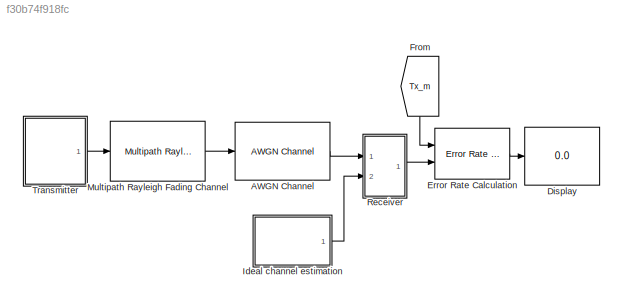
MODEL slx_f30b74f918fc
KIND model
CONFIG AbsTol = auto
CONFIG FixedStep = auto
CONFIG InitFcn = DopplerShift = 10; % 最大多普勒频移，单位Hz\n% LTE EPA信道模型\nTau = ([0 30 70 90 110 190 410]) * 1e-9; % 每径的延迟，单位s\nPdb = [0 -1.0 -2.0 -3.0 -8.0 -17.2 -20.8]; % 每径的功率衰减\nSNR = 10; % 信噪比\nSimTime = 5; % 仿真时间\n
CONFIG MaxStep = auto
CONFIG MinStep = auto
CONFIG RelTol = 1e-3
CONFIG SampleTimeConstraint = Unconstrained
CONFIG Solver = VariableStepDiscrete
CONFIG SolverMode = Auto
CONFIG SolverName = VariableStepDiscrete
CONFIG StartTime = 0.0
CONFIG StopTime = SimTime
BLOCK [Reference] AWGN Channel  REF=commchan3/AWGN
Channel
  Ports = [1, 1]
  SourceBlock = commchan3/AWGN\nChannel
  SourceType = AWGN Channel
  UserDataPersistent = on
BLOCK [Display] Display
  Decimation = 1
  Ports = [1]
BLOCK [Reference] Error Rate Calculation  REF=commsink2/Error Rate
Calculation
  Ports = [2, 1]
  SourceBlock = commsink2/Error Rate\nCalculation
  SourceType = Error Rate Calculation
BLOCK [From] From
  GotoTag = Tx_m
  TagVisibility = global
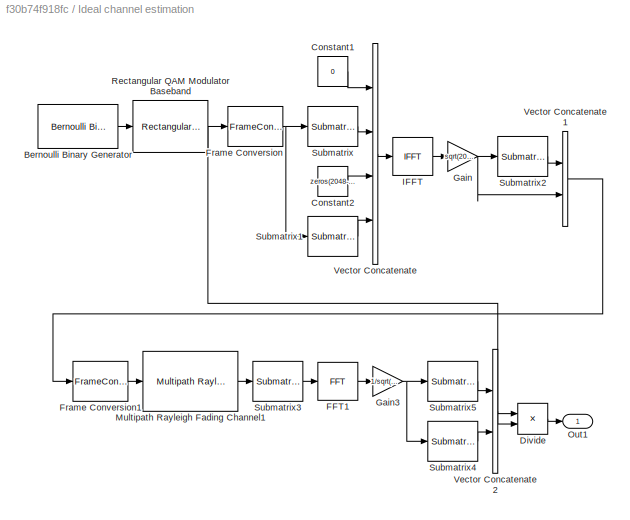
BLOCK [SubSystem] Ideal channel estimation
  Ports = [0, 1]
  RequestExecContextInheritance = off
  Variant = off
BLOCK [Reference] Ideal channel estimation/Bernoulli Binary Generator  REF=commrandsrc2/Bernoulli Binary
Generator
  Ports = [0, 1]
  SourceBlock = commrandsrc2/Bernoulli Binary\nGenerator
  SourceType = Bernoulli Binary Generator
BLOCK [Constant] Ideal channel estimation/Constant1
  Value = 0
BLOCK [Constant] Ideal channel estimation/Constant2
  Value = zeros(2048-1200-1,1)
BLOCK [Product] Ideal channel estimation/Divide
  InputSameDT = off
  Inputs = */
  OutDataTypeStr = Inherit: Inherit via internal rule
  Ports = [2, 1]
  RndMeth = Floor
  SaturateOnIntegerOverflow = off
BLOCK [Reference] Ideal channel estimation/FFT1  REF=dspxfrm3/FFT
  Ports = [1, 1]
  SourceBlock = dspxfrm3/FFT
  SourceType = FFT
BLOCK [FrameConversion] Ideal channel estimation/Frame Conversion
  InheritSamplingMode = off
  OutFrame = Sample-based
  Ports = [1, 1]
BLOCK [FrameConversion] Ideal channel estimation/Frame Conversion1
  InheritSamplingMode = off
  Ports = [1, 1]
BLOCK [Gain] Ideal channel estimation/Gain
  Gain = sqrt(2048)
  OutDataTypeStr = Inherit: Inherit via internal rule
  ParamDataTypeStr = Inherit: Inherit via internal rule
  SaturateOnIntegerOverflow = off
BLOCK [Gain] Ideal channel estimation/Gain3
  Gain = 1/sqrt(2048)
  OutDataTypeStr = Inherit: Inherit via internal rule
  ParamDataTypeStr = Inherit: Inherit via internal rule
  SaturateOnIntegerOverflow = off
BLOCK [Reference] Ideal channel estimation/IFFT  REF=dspxfrm3/IFFT
  Ports = [1, 1]
  SourceBlock = dspxfrm3/IFFT
  SourceType = IFFT
BLOCK [Reference] Ideal channel estimation/Multipath Rayleigh Fading Channel1  REF=commchan3/Multipath Rayleigh
Fading Channel
  Ports = [1, 1]
  SourceBlock = commchan3/Multipath Rayleigh\nFading Channel
  SourceType = Multipath Rayleigh Fading Channel
BLOCK [Outport] Ideal channel estimation/Out1
  IconDisplay = Port number
BLOCK [Reference] Ideal channel estimation/Rectangular QAM Modulator Baseband  REF=commdigbbndam3/Rectangular QAM
Modulator
Baseband
  Ports = [1, 1]
  SourceBlock = commdigbbndam3/Rectangular QAM\nModulator\nBaseband
  SourceType = Rectangular QAM Modulator Baseband
BLOCK [Reference] Ideal channel estimation/Submatrix  REF=dspmtrx3/Submatrix
  Ports = [1, 1]
  SourceBlock = dspmtrx3/Submatrix
  SourceType = Submatrix
BLOCK [Reference] Ideal channel estimation/Submatrix1  REF=dspmtrx3/Submatrix
  Ports = [1, 1]
  SourceBlock = dspmtrx3/Submatrix
  SourceType = Submatrix
BLOCK [Reference] Ideal channel estimation/Submatrix2  REF=dspmtrx3/Submatrix
  Ports = [1, 1]
  SourceBlock = dspmtrx3/Submatrix
  SourceType = Submatrix
BLOCK [Reference] Ideal channel estimation/Submatrix3  REF=dspmtrx3/Submatrix
  Ports = [1, 1]
  SourceBlock = dspmtrx3/Submatrix
  SourceType = Submatrix
BLOCK [Reference] Ideal channel estimation/Submatrix4  REF=dspmtrx3/Submatrix
  Ports = [1, 1]
  SourceBlock = dspmtrx3/Submatrix
  SourceType = Submatrix
BLOCK [Reference] Ideal channel estimation/Submatrix5  REF=dspmtrx3/Submatrix
  Ports = [1, 1]
  SourceBlock = dspmtrx3/Submatrix
  SourceType = Submatrix
BLOCK [Concatenate] Ideal channel estimation/Vector Concatenate
  NumInputs = 4
  Ports = [4, 1]
BLOCK [Concatenate] Ideal channel estimation/Vector Concatenate1
  Ports = [2, 1]
BLOCK [Concatenate] Ideal channel estimation/Vector Concatenate2
  Ports = [2, 1]
BLOCK [Reference] Multipath Rayleigh Fading Channel  REF=commchan3/Multipath Rayleigh
Fading Channel
  Ports = [1, 1]
  SourceBlock = commchan3/Multipath Rayleigh\nFading Channel
  SourceType = Multipath Rayleigh Fading Channel
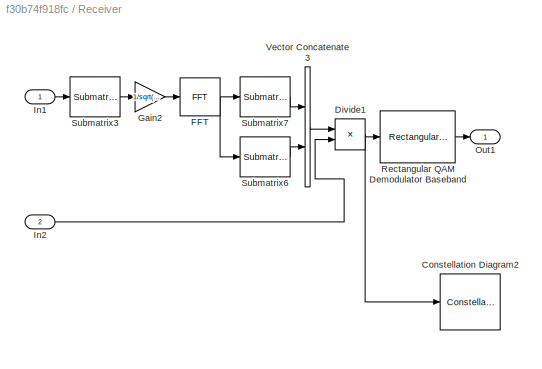
BLOCK [SubSystem] Receiver
  Ports = [2, 1]
  RequestExecContextInheritance = off
  Variant = off
BLOCK [ConstellationDiagram] Receiver/Constellation Diagram2
  Ports = [1]
  ScopeSpecificationString = comm.scopes.ConstellationDiagramBlockCfg('CurrentConfiguration', extmgr.ConfigurationSet(extmgr.Configuration('Core','General UI',true),extmgr.Configuration('Core','Source UI',true),extmgr.Configuration('Sources','WiredSimulink',true),extmgr.Configuration('Sources','Workspace',false),extmgr.Configuration('Sources','File',false),extmgr.Configuration('Sources','SimulinkEvent',false),extmgr.Configura...<+2289ch>
BLOCK [Product] Receiver/Divide1
  InputSameDT = off
  Inputs = */
  OutDataTypeStr = Inherit: Inherit via internal rule
  Ports = [2, 1]
  RndMeth = Floor
  SaturateOnIntegerOverflow = off
BLOCK [Reference] Receiver/FFT  REF=dspxfrm3/FFT
  Ports = [1, 1]
  SourceBlock = dspxfrm3/FFT
  SourceType = FFT
BLOCK [Gain] Receiver/Gain2
  Gain = 1/sqrt(2048)
  OutDataTypeStr = Inherit: Inherit via internal rule
  ParamDataTypeStr = Inherit: Inherit via internal rule
  SaturateOnIntegerOverflow = off
BLOCK [Inport] Receiver/In1
  IconDisplay = Port number
BLOCK [Inport] Receiver/In2
  IconDisplay = Port number
  Port = 2
BLOCK [Outport] Receiver/Out1
  IconDisplay = Port number
BLOCK [Reference] Receiver/Rectangular QAM Demodulator Baseband  REF=commdigbbndam3/Rectangular QAM
Demodulator
Baseband
  Ports = [1, 1]
  SourceBlock = commdigbbndam3/Rectangular QAM\nDemodulator\nBaseband
  SourceType = Rectangular QAM Demodulator Baseband
BLOCK [Reference] Receiver/Submatrix3  REF=dspmtrx3/Submatrix
  Ports = [1, 1]
  SourceBlock = dspmtrx3/Submatrix
  SourceType = Submatrix
BLOCK [Reference] Receiver/Submatrix6  REF=dspmtrx3/Submatrix
  Ports = [1, 1]
  SourceBlock = dspmtrx3/Submatrix
  SourceType = Submatrix
BLOCK [Reference] Receiver/Submatrix7  REF=dspmtrx3/Submatrix
  Ports = [1, 1]
  SourceBlock = dspmtrx3/Submatrix
  SourceType = Submatrix
BLOCK [Concatenate] Receiver/Vector Concatenate3
  Ports = [2, 1]
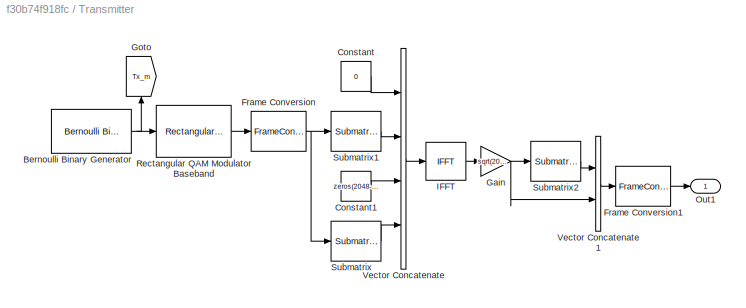
BLOCK [SubSystem] Transmitter
  Ports = [0, 1]
  RequestExecContextInheritance = off
  Variant = off
BLOCK [Reference] Transmitter/Bernoulli Binary Generator  REF=commrandsrc2/Bernoulli Binary
Generator
  Ports = [0, 1]
  SourceBlock = commrandsrc2/Bernoulli Binary\nGenerator
  SourceType = Bernoulli Binary Generator
BLOCK [Constant] Transmitter/Constant
  Value = 0
BLOCK [Constant] Transmitter/Constant1
  Value = zeros(2048-1200-1,1)
BLOCK [FrameConversion] Transmitter/Frame Conversion
  InheritSamplingMode = off
  OutFrame = Sample-based
  Ports = [1, 1]
BLOCK [FrameConversion] Transmitter/Frame Conversion1
  InheritSamplingMode = off
  Ports = [1, 1]
BLOCK [Gain] Transmitter/Gain
  Gain = sqrt(2048)
  OutDataTypeStr = Inherit: Inherit via internal rule
  ParamDataTypeStr = Inherit: Inherit via internal rule
  SaturateOnIntegerOverflow = off
BLOCK [Goto] Transmitter/Goto
  GotoTag = Tx_m
  TagVisibility = global
BLOCK [Reference] Transmitter/IFFT  REF=dspxfrm3/IFFT
  Ports = [1, 1]
  SourceBlock = dspxfrm3/IFFT
  SourceType = IFFT
BLOCK [Outport] Transmitter/Out1
  IconDisplay = Port number
BLOCK [Reference] Transmitter/Rectangular QAM Modulator Baseband  REF=commdigbbndam3/Rectangular QAM
Modulator
Baseband
  Ports = [1, 1]
  SourceBlock = commdigbbndam3/Rectangular QAM\nModulator\nBaseband
  SourceType = Rectangular QAM Modulator Baseband
BLOCK [Reference] Transmitter/Submatrix  REF=dspmtrx3/Submatrix
  Ports = [1, 1]
  SourceBlock = dspmtrx3/Submatrix
  SourceType = Submatrix
BLOCK [Reference] Transmitter/Submatrix1  REF=dspmtrx3/Submatrix
  Ports = [1, 1]
  SourceBlock = dspmtrx3/Submatrix
  SourceType = Submatrix
BLOCK [Reference] Transmitter/Submatrix2  REF=dspmtrx3/Submatrix
  Ports = [1, 1]
  SourceBlock = dspmtrx3/Submatrix
  SourceType = Submatrix
BLOCK [Concatenate] Transmitter/Vector Concatenate
  NumInputs = 4
  Ports = [4, 1]
BLOCK [Concatenate] Transmitter/Vector Concatenate1
  Ports = [2, 1]
LINE AWGN Channel:1 -> Receiver:1
LINE Error Rate Calculation:1 -> Display:1
LINE From:1 -> Error Rate Calculation:1
LINE Ideal channel estimation/Bernoulli Binary Generator:1 -> Ideal channel estimation/Rectangular QAM Modulator Baseband:1
LINE Ideal channel estimation/Constant1:1 -> Ideal channel estimation/Vector Concatenate:1
LINE Ideal channel estimation/Constant2:1 -> Ideal channel estimation/Vector Concatenate:3
LINE Ideal channel estimation/Divide:1 -> Ideal channel estimation/Out1:1
LINE Ideal channel estimation/FFT1:1 -> Ideal channel estimation/Gain3:1
LINE Ideal channel estimation/Frame Conversion1:1 -> Ideal channel estimation/Multipath Rayleigh Fading Channel1:1
NET Ideal channel estimation/Frame Conversion:1 -> Ideal channel estimation/Submatrix1:1, Ideal channel estimation/Submatrix:1
NET Ideal channel estimation/Gain3:1 -> Ideal channel estimation/Submatrix4:1, Ideal channel estimation/Submatrix5:1
NET Ideal channel estimation/Gain:1 -> Ideal channel estimation/Submatrix2:1, Ideal channel estimation/Vector Concatenate1:2
LINE Ideal channel estimation/IFFT:1 -> Ideal channel estimation/Gain:1
LINE Ideal channel estimation/Multipath Rayleigh Fading Channel1:1 -> Ideal channel estimation/Submatrix3:1
NET Ideal channel estimation/Rectangular QAM Modulator Baseband:1 -> Ideal channel estimation/Divide:2, Ideal channel estimation/Frame Conversion:1
LINE Ideal channel estimation/Submatrix1:1 -> Ideal channel estimation/Vector Concatenate:4
LINE Ideal channel estimation/Submatrix2:1 -> Ideal channel estimation/Vector Concatenate1:1
LINE Ideal channel estimation/Submatrix3:1 -> Ideal channel estimation/FFT1:1
LINE Ideal channel estimation/Submatrix4:1 -> Ideal channel estimation/Vector Concatenate2:2
LINE Ideal channel estimation/Submatrix5:1 -> Ideal channel estimation/Vector Concatenate2:1
LINE Ideal channel estimation/Submatrix:1 -> Ideal channel estimation/Vector Concatenate:2
LINE Ideal channel estimation/Vector Concatenate1:1 -> Ideal channel estimation/Frame Conversion1:1
LINE Ideal channel estimation/Vector Concatenate2:1 -> Ideal channel estimation/Divide:1
LINE Ideal channel estimation/Vector Concatenate:1 -> Ideal channel estimation/IFFT:1
LINE Ideal channel estimation:1 -> Receiver:2
LINE Multipath Rayleigh Fading Channel:1 -> AWGN Channel:1
NET Receiver/Divide1:1 -> Receiver/Constellation Diagram2:1, Receiver/Rectangular QAM Demodulator Baseband:1
NET Receiver/FFT:1 -> Receiver/Submatrix6:1, Receiver/Submatrix7:1
LINE Receiver/Gain2:1 -> Receiver/FFT:1
LINE Receiver/In1:1 -> Receiver/Submatrix3:1
LINE Receiver/In2:1 -> Receiver/Divide1:2
LINE Receiver/Rectangular QAM Demodulator Baseband:1 -> Receiver/Out1:1
LINE Receiver/Submatrix3:1 -> Receiver/Gain2:1
LINE Receiver/Submatrix6:1 -> Receiver/Vector Concatenate3:2
LINE Receiver/Submatrix7:1 -> Receiver/Vector Concatenate3:1
LINE Receiver/Vector Concatenate3:1 -> Receiver/Divide1:1
LINE Receiver:1 -> Error Rate Calculation:2
NET Transmitter/Bernoulli Binary Generator:1 -> Transmitter/Goto:1, Transmitter/Rectangular QAM Modulator Baseband:1
LINE Transmitter/Constant1:1 -> Transmitter/Vector Concatenate:3
LINE Transmitter/Constant:1 -> Transmitter/Vector Concatenate:1
LINE Transmitter/Frame Conversion1:1 -> Transmitter/Out1:1
NET Transmitter/Frame Conversion:1 -> Transmitter/Submatrix1:1, Transmitter/Submatrix:1
NET Transmitter/Gain:1 -> Transmitter/Submatrix2:1, Transmitter/Vector Concatenate1:2
LINE Transmitter/IFFT:1 -> Transmitter/Gain:1
LINE Transmitter/Rectangular QAM Modulator Baseband:1 -> Transmitter/Frame Conversion:1
LINE Transmitter/Submatrix1:1 -> Transmitter/Vector Concatenate:2
LINE Transmitter/Submatrix2:1 -> Transmitter/Vector Concatenate1:1
LINE Transmitter/Submatrix:1 -> Transmitter/Vector Concatenate:4
LINE Transmitter/Vector Concatenate1:1 -> Transmitter/Frame Conversion1:1
LINE Transmitter/Vector Concatenate:1 -> Transmitter/IFFT:1
LINE Transmitter:1 -> Multipath Rayleigh Fading Channel:1
note: NET lines group one-source signal fan-out (src -> all destinations, sorted); 1:1 wires keep LINE
